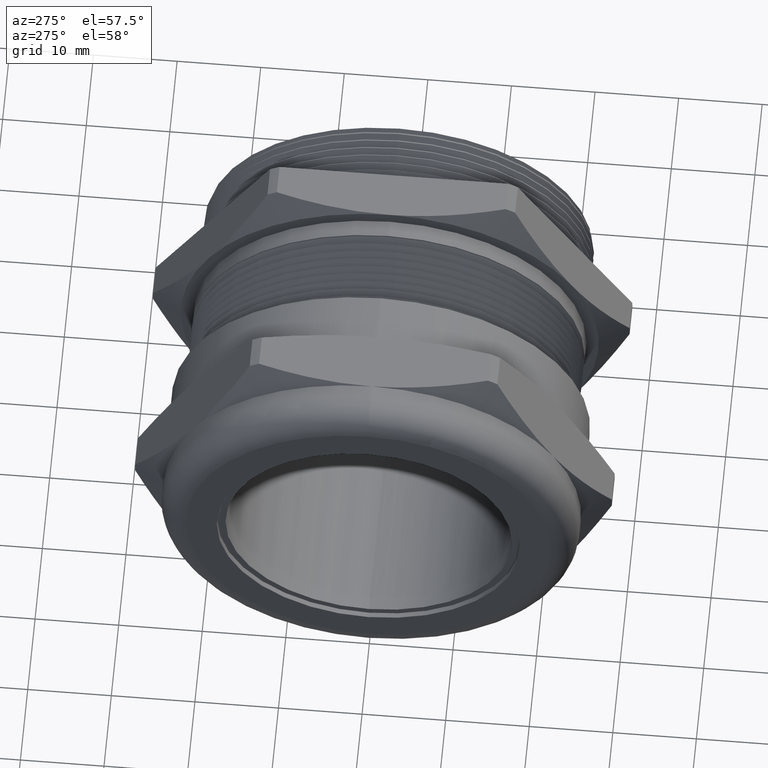
[diagram: clean part render]
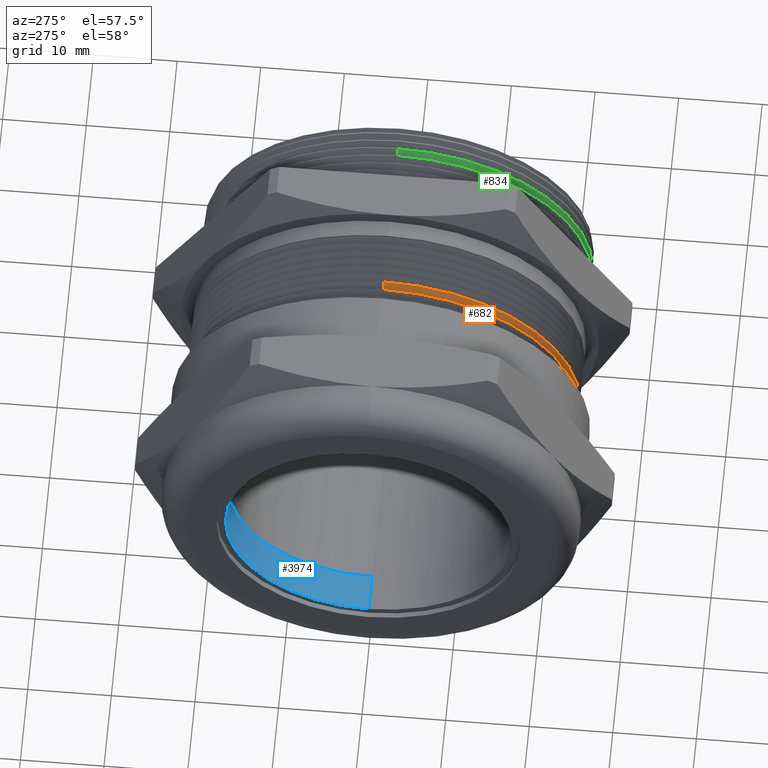
[diagram: same view with three faces highlighted in distinct colors, each labeled with its STEP entity id]
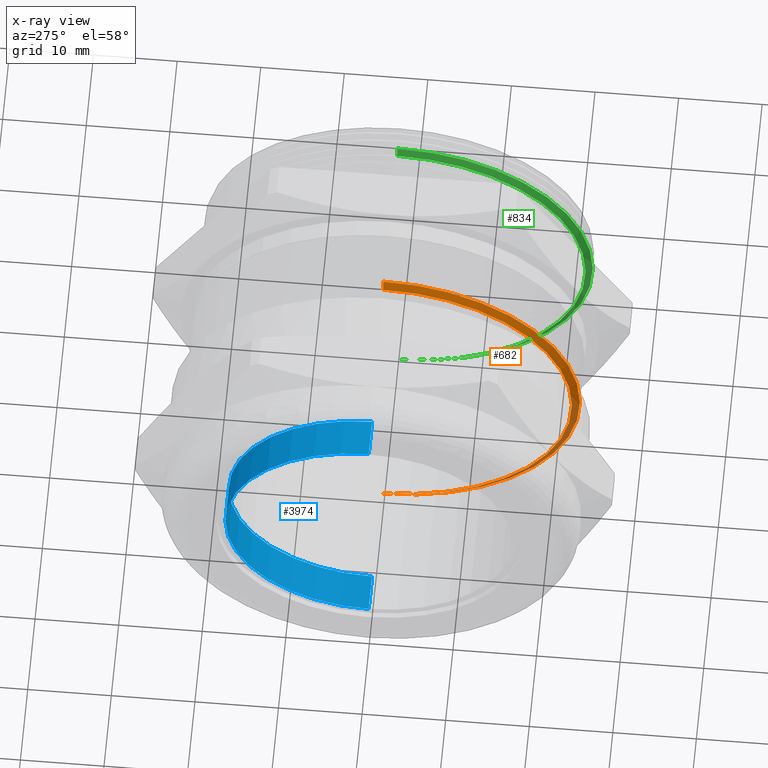
[diagram: x-ray of the same camera — body ghosted, the three highlighted faces saturated]
A machine part, auxiliary view with three faces highlighted in distinct colors.
The next image is the same camera in x-ray (body ghosted, the three faces saturated) — at least one of them is partly hidden behind the body in this view.
Their STEP definitions:

[orange] entity #682 — the highlighted conical surface has half-angle 60 deg.
#268 = EDGE_CURVE ( 'NONE', #286, #275, #1307, .T. ) ;
#275 = VERTEX_POINT ( 'NONE', #1297 ) ;
#285 = VERTEX_POINT ( 'NONE', #1334 ) ;
#286 = VERTEX_POINT ( 'NONE', #1333 ) ;
#288 = EDGE_CURVE ( 'NONE', #285, #297, #1332, .T. ) ;
#297 = VERTEX_POINT ( 'NONE', #1314 ) ;
#679 = EDGE_CURVE ( 'NONE', #286, #285, #1979, .T. ) ;
#682 = ADVANCED_FACE ( 'NONE', ( #1975 ), #1974, .T. ) ;
#683 = EDGE_LOOP ( 'NONE', ( #684, #685, #686, #687 ) ) ;
#684 = ORIENTED_EDGE ( 'NONE', *, *, #288, .F. ) ;
#685 = ORIENTED_EDGE ( 'NONE', *, *, #679, .F. ) ;
#686 = ORIENTED_EDGE ( 'NONE', *, *, #268, .T. ) ;
#687 = ORIENTED_EDGE ( 'NONE', *, *, #688, .T. ) ;
#688 = EDGE_CURVE ( 'NONE', #275, #297, #1973, .T. ) ;
#1297 = CARTESIAN_POINT ( 'NONE',  ( -0.02069999999999983000, 0.0000000000000000000, -0.9250000000000001600 ) ) ;
#1304 = DIRECTION ( 'NONE',  ( 0.4999999999999977200, 0.0000000000000000000, -0.8660254037844398200 ) ) ;
#1305 = VECTOR ( 'NONE', #1304, 39.37007874015748100 ) ;
#1306 = CARTESIAN_POINT ( 'NONE',  ( -0.04169999999999984100, 0.0000000000000000000, -0.8886269330410534500 ) ) ;
#1307 = LINE ( 'NONE', #1306, #1305 ) ;
#1314 = CARTESIAN_POINT ( 'NONE',  ( -0.02069999999999983000, 1.132798289211302000E-016, 0.9250000000000001600 ) ) ;
#1329 = DIRECTION ( 'NONE',  ( 0.4999999999999977200, 1.060575238724908500E-016, 0.8660254037844398200 ) ) ;
#1330 = VECTOR ( 'NONE', #1329, 39.37007874015748100 ) ;
#1331 = CARTESIAN_POINT ( 'NONE',  ( -0.04169999999999984100, 1.088254129184855600E-016, 0.8886269330410534500 ) ) ;
#1332 = LINE ( 'NONE', #1331, #1330 ) ;
#1333 = CARTESIAN_POINT ( 'NONE',  ( -0.04169999999999984100, 1.110526209198078700E-016, -0.8886269330410534500 ) ) ;
#1334 = CARTESIAN_POINT ( 'NONE',  ( -0.04169999999999984100, 0.0000000000000000000, 0.8886269330410534500 ) ) ;
#1965 = DIRECTION ( 'NONE',  ( 0.0000000000000000000, 0.0000000000000000000, 1.000000000000000000 ) ) ;
#1966 = DIRECTION ( 'NONE',  ( -1.000000000000000000, 0.0000000000000000000, 0.0000000000000000000 ) ) ;
#1967 = CARTESIAN_POINT ( 'NONE',  ( -0.02069999999999983000, 0.0000000000000000000, 0.0000000000000000000 ) ) ;
#1968 = AXIS2_PLACEMENT_3D ( 'NONE', #1967, #1966, #1965 ) ;
#1969 = DIRECTION ( 'NONE',  ( 0.0000000000000000000, 0.0000000000000000000, -1.000000000000000000 ) ) ;
#1970 = DIRECTION ( 'NONE',  ( 1.000000000000000000, 0.0000000000000000000, 0.0000000000000000000 ) ) ;
#1971 = CARTESIAN_POINT ( 'NONE',  ( -0.04169999999999984100, 0.0000000000000000000, 0.0000000000000000000 ) ) ;
#1972 = AXIS2_PLACEMENT_3D ( 'NONE', #1971, #1970, #1969 ) ;
#1973 = CIRCLE ( 'NONE', #1968, 0.9250000000000001600 ) ;
#1974 = CONICAL_SURFACE ( 'NONE', #1972, 0.8886269330410534500, 1.047197551196600300 ) ;
#1975 = FACE_OUTER_BOUND ( 'NONE', #683, .T. ) ;
#1976 = DIRECTION ( 'NONE',  ( 0.0000000000000000000, 0.0000000000000000000, 1.000000000000000000 ) ) ;
#1977 = DIRECTION ( 'NONE',  ( -1.000000000000000000, 0.0000000000000000000, 0.0000000000000000000 ) ) ;
#1978 = AXIS2_PLACEMENT_3D ( 'NONE', #1984, #1977, #1976 ) ;
#1979 = CIRCLE ( 'NONE', #1978, 0.8886269330410534500 ) ;
#1984 = CARTESIAN_POINT ( 'NONE',  ( -0.04169999999999984100, 0.0000000000000000000, 0.0000000000000000000 ) ) ;

[blue] entity #3974 — the highlighted cylindrical surface (partial cylindrical patch) has radius 17.145 mm, axis along (1, 0, 0).
#2663 = DIRECTION ( 'NONE',  ( 1.000000000000000000, 0.0000000000000000000, 0.0000000000000000000 ) ) ;
#2664 = VECTOR ( 'NONE', #2663, 39.37007874015748100 ) ;
#2665 = CARTESIAN_POINT ( 'NONE',  ( 0.5452584728366800500, 0.0000000000000000000, -0.6750000000000000400 ) ) ;
#2666 = LINE ( 'NONE', #2665, #2664 ) ;
#2667 = DIRECTION ( 'NONE',  ( 0.0000000000000000000, 0.0000000000000000000, -1.000000000000000000 ) ) ;
#2668 = DIRECTION ( 'NONE',  ( 1.000000000000000000, 0.0000000000000000000, 0.0000000000000000000 ) ) ;
#2669 = AXIS2_PLACEMENT_3D ( 'NONE', #2672, #2668, #2667 ) ;
#2670 = CYLINDRICAL_SURFACE ( 'NONE', #2669, 0.6750000000000000400 ) ;
#2671 = CARTESIAN_POINT ( 'NONE',  ( -0.8249999999999998400, 8.266365894244635600E-017, 0.6750000000000000400 ) ) ;
#2672 = CARTESIAN_POINT ( 'NONE',  ( 0.5452584728366800500, 0.0000000000000000000, 0.0000000000000000000 ) ) ;
#2673 = FACE_OUTER_BOUND ( 'NONE', #3988, .T. ) ;
#2675 = CARTESIAN_POINT ( 'NONE',  ( -0.6434999999999998500, 0.0000000000000000000, -0.6750000000000000400 ) ) ;
#2686 = CARTESIAN_POINT ( 'NONE',  ( -0.6434999999999998500, 8.266365894244635600E-017, 0.6750000000000000400 ) ) ;
#2692 = DIRECTION ( 'NONE',  ( 1.000000000000000000, 0.0000000000000000000, 0.0000000000000000000 ) ) ;
#2693 = VECTOR ( 'NONE', #2692, 39.37007874015748100 ) ;
#2694 = CARTESIAN_POINT ( 'NONE',  ( 0.5452584728366800500, 8.266365894244635600E-017, 0.6750000000000000400 ) ) ;
#2695 = LINE ( 'NONE', #2694, #2693 ) ;
#2700 = CARTESIAN_POINT ( 'NONE',  ( -0.8249999999999998400, 0.0000000000000000000, -0.6750000000000000400 ) ) ;
#2729 = DIRECTION ( 'NONE',  ( 0.0000000000000000000, 0.0000000000000000000, -1.000000000000000000 ) ) ;
#2730 = DIRECTION ( 'NONE',  ( 1.000000000000000000, 0.0000000000000000000, 0.0000000000000000000 ) ) ;
#2731 = CARTESIAN_POINT ( 'NONE',  ( -0.6434999999999998500, 0.0000000000000000000, 0.0000000000000000000 ) ) ;
#2732 = AXIS2_PLACEMENT_3D ( 'NONE', #2731, #2730, #2729 ) ;
#2733 = CIRCLE ( 'NONE', #2732, 0.6750000000000000400 ) ;
#2746 = DIRECTION ( 'NONE',  ( 0.0000000000000000000, 0.0000000000000000000, -1.000000000000000000 ) ) ;
#2747 = DIRECTION ( 'NONE',  ( 1.000000000000000000, 0.0000000000000000000, 0.0000000000000000000 ) ) ;
#2748 = CARTESIAN_POINT ( 'NONE',  ( -0.8249999999999998400, 0.0000000000000000000, 0.0000000000000000000 ) ) ;
#2749 = AXIS2_PLACEMENT_3D ( 'NONE', #2748, #2747, #2746 ) ;
#2750 = CIRCLE ( 'NONE', #2749, 0.6750000000000000400 ) ;
#3970 = VERTEX_POINT ( 'NONE', #2675 ) ;
#3972 = ORIENTED_EDGE ( 'NONE', *, *, #4000, .F. ) ;
#3974 = ADVANCED_FACE ( 'NONE', ( #2673 ), #2670, .F. ) ;
#3977 = VERTEX_POINT ( 'NONE', #2671 ) ;
#3978 = EDGE_CURVE ( 'NONE', #3993, #3970, #2666, .T. ) ;
#3988 = EDGE_LOOP ( 'NONE', ( #4007, #3972, #3994, #4005 ) ) ;
#3993 = VERTEX_POINT ( 'NONE', #2700 ) ;
#3994 = ORIENTED_EDGE ( 'NONE', *, *, #3978, .T. ) ;
#3996 = EDGE_CURVE ( 'NONE', #3977, #3999, #2695, .T. ) ;
#3999 = VERTEX_POINT ( 'NONE', #2686 ) ;
#4000 = EDGE_CURVE ( 'NONE', #3993, #3977, #2750, .T. ) ;
#4004 = EDGE_CURVE ( 'NONE', #3970, #3999, #2733, .T. ) ;
#4005 = ORIENTED_EDGE ( 'NONE', *, *, #4004, .T. ) ;
#4007 = ORIENTED_EDGE ( 'NONE', *, *, #3996, .F. ) ;

[green] entity #834 — the highlighted conical surface has half-angle 58.5 deg.
#769 = ORIENTED_EDGE ( 'NONE', *, *, #3793, .T. ) ;
#770 = ORIENTED_EDGE ( 'NONE', *, *, #3957, .T. ) ;
#831 = EDGE_CURVE ( 'NONE', #4183, #4189, #2153, .T. ) ;
#834 = ADVANCED_FACE ( 'NONE', ( #2149 ), #2148, .T. ) ;
#835 = EDGE_LOOP ( 'NONE', ( #836, #837, #769, #770 ) ) ;
#836 = ORIENTED_EDGE ( 'NONE', *, *, #4213, .F. ) ;
#837 = ORIENTED_EDGE ( 'NONE', *, *, #831, .F. ) ;
#2148 = CONICAL_SURFACE ( 'NONE', #2210, 0.8874223806488705800, 1.021017612416689200 ) ;
#2149 = FACE_OUTER_BOUND ( 'NONE', #835, .T. ) ;
#2150 = DIRECTION ( 'NONE',  ( 0.0000000000000000000, 0.0000000000000000000, 1.000000000000000000 ) ) ;
#2151 = DIRECTION ( 'NONE',  ( -1.000000000000000000, 0.0000000000000000000, 0.0000000000000000000 ) ) ;
#2152 = AXIS2_PLACEMENT_3D ( 'NONE', #2158, #2151, #2150 ) ;
#2153 = CIRCLE ( 'NONE', #2152, 0.8874223806488705800 ) ;
#2158 = CARTESIAN_POINT ( 'NONE',  ( 0.7060475377213820700, 0.0000000000000000000, 0.0000000000000000000 ) ) ;
#2207 = DIRECTION ( 'NONE',  ( 0.0000000000000000000, 0.0000000000000000000, -1.000000000000000000 ) ) ;
#2208 = DIRECTION ( 'NONE',  ( 1.000000000000000000, 0.0000000000000000000, 0.0000000000000000000 ) ) ;
#2209 = CARTESIAN_POINT ( 'NONE',  ( 0.7060475377213820700, 0.0000000000000000000, 0.0000000000000000000 ) ) ;
#2210 = AXIS2_PLACEMENT_3D ( 'NONE', #2209, #2208, #2207 ) ;
#2319 = CARTESIAN_POINT ( 'NONE',  ( 0.7260100414487539200, 1.126672882735858100E-016, -0.9199982260356959200 ) ) ;
#2321 = DIRECTION ( 'NONE',  ( 0.5224985647159433600, 0.0000000000000000000, -0.8526401643540955100 ) ) ;
#2322 = VECTOR ( 'NONE', #2321, 39.37007874015748900 ) ;
#2323 = CARTESIAN_POINT ( 'NONE',  ( 0.7060475377213820700, 0.0000000000000000000, -0.8874223806488705800 ) ) ;
#2324 = LINE ( 'NONE', #2323, #2322 ) ;
#2635 = DIRECTION ( 'NONE',  ( 0.0000000000000000000, 0.0000000000000000000, -1.000000000000000000 ) ) ;
#2636 = DIRECTION ( 'NONE',  ( -1.000000000000000000, 0.0000000000000000000, 0.0000000000000000000 ) ) ;
#2637 = CARTESIAN_POINT ( 'NONE',  ( 0.7260100414487539200, 0.0000000000000000000, 0.0000000000000000000 ) ) ;
#2638 = AXIS2_PLACEMENT_3D ( 'NONE', #2637, #2636, #2635 ) ;
#2639 = CIRCLE ( 'NONE', #2638, 0.9199982260356959200 ) ;
#3140 = CARTESIAN_POINT ( 'NONE',  ( 0.7060475377213820700, 0.0000000000000000000, 0.8874223806488705800 ) ) ;
#3146 = CARTESIAN_POINT ( 'NONE',  ( 0.7060475377213820700, 1.107338322727089000E-016, -0.8874223806488705800 ) ) ;
#3162 = CARTESIAN_POINT ( 'NONE',  ( 0.7260100414487539200, 0.0000000000000000000, 0.9199982260356959200 ) ) ;
#3214 = DIRECTION ( 'NONE',  ( 0.5224985647159433600, 1.044183048100716200E-016, 0.8526401643540955100 ) ) ;
#3215 = VECTOR ( 'NONE', #3214, 39.37007874015748900 ) ;
#3216 = CARTESIAN_POINT ( 'NONE',  ( 0.7060475377213820700, 1.086778977953363500E-016, 0.8874223806488705800 ) ) ;
#3217 = LINE ( 'NONE', #3216, #3215 ) ;
#3793 = EDGE_CURVE ( 'NONE', #4183, #3800, #2324, .T. ) ;
#3800 = VERTEX_POINT ( 'NONE', #2319 ) ;
#3957 = EDGE_CURVE ( 'NONE', #3800, #4210, #2639, .T. ) ;
#4183 = VERTEX_POINT ( 'NONE', #3146 ) ;
#4189 = VERTEX_POINT ( 'NONE', #3140 ) ;
#4210 = VERTEX_POINT ( 'NONE', #3162 ) ;
#4213 = EDGE_CURVE ( 'NONE', #4189, #4210, #3217, .T. ) ;